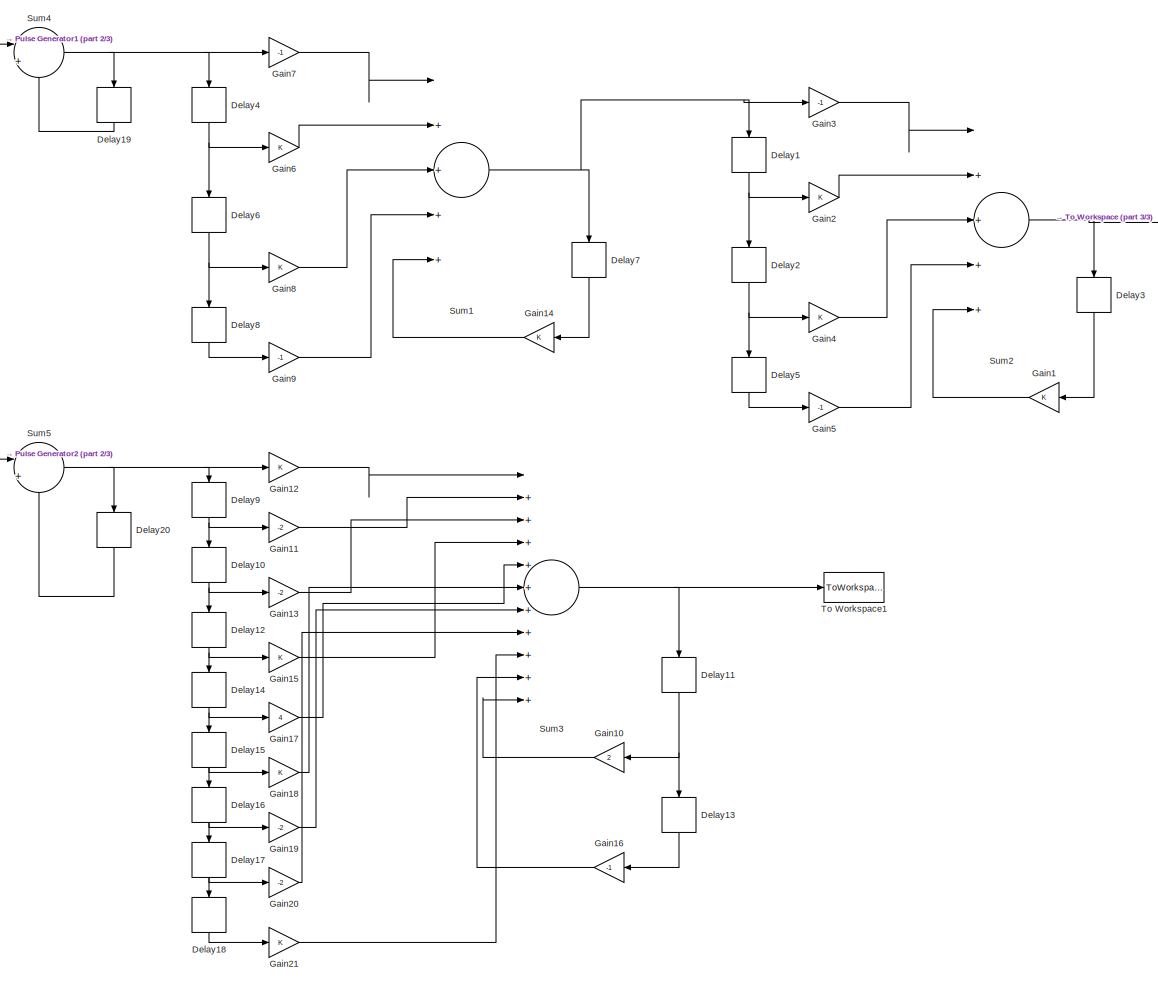
[diagram: root canvas - part 1/3, most of the canvas]
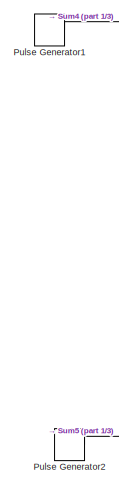
[diagram: root canvas - part 2/3, top left region]
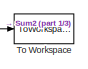
[diagram: root canvas - part 3/3, top right region]
MODEL slx_5322fe0e7de6
KIND model
CONFIG AbsTol = auto
CONFIG EnableMultiTasking = on
CONFIG FixedStep = auto
CONFIG MaxStep = auto
CONFIG MinStep = auto
CONFIG RelTol = 1e-3
CONFIG SampleTimeConstraint = Unconstrained
CONFIG Solver = ode45
CONFIG SolverName = ode45
CONFIG StartTime = 0.0
CONFIG StopTime = 20
BLOCK [Delay] Delay1
  DelayLength = 3
  InitialCondition = 0
  InputPortMap = u0
  InputProcessing = Inherited
  Ports = [1, 1]
BLOCK [Delay] Delay10
  DelayLength = 1
  InitialCondition = 0
  InputPortMap = u0
  InputProcessing = Inherited
  Ports = [1, 1]
BLOCK [Delay] Delay11
  DelayLength = 1
  InitialCondition = 0
  InputPortMap = u0
  InputProcessing = Inherited
  Ports = [1, 1]
BLOCK [Delay] Delay12
  InitialCondition = 0
  InputPortMap = u0
  InputProcessing = Inherited
  Ports = [1, 1]
BLOCK [Delay] Delay13
  DelayLength = 1
  InitialCondition = 0
  InputPortMap = u0
  InputProcessing = Inherited
  Ports = [1, 1]
BLOCK [Delay] Delay14
  DelayLength = 1
  InitialCondition = 0
  InputPortMap = u0
  InputProcessing = Inherited
  Ports = [1, 1]
BLOCK [Delay] Delay15
  DelayLength = 1
  InitialCondition = 0
  InputPortMap = u0
  InputProcessing = Inherited
  Ports = [1, 1]
BLOCK [Delay] Delay16
  InitialCondition = 0
  InputPortMap = u0
  InputProcessing = Inherited
  Ports = [1, 1]
BLOCK [Delay] Delay17
  DelayLength = 1
  InitialCondition = 0
  InputPortMap = u0
  InputProcessing = Inherited
  Ports = [1, 1]
BLOCK [Delay] Delay18
  DelayLength = 3
  InitialCondition = 0
  InputPortMap = u0
  InputProcessing = Inherited
  Ports = [1, 1]
BLOCK [Delay] Delay19
  DelayLength = 14
  InitialCondition = 0
  InputPortMap = u0
  InputProcessing = Inherited
  Ports = [1, 1]
BLOCK [Delay] Delay2
  DelayLength = 1
  InitialCondition = 0
  InputPortMap = u0
  InputProcessing = Inherited
  Ports = [1, 1]
BLOCK [Delay] Delay20
  DelayLength = 14
  InitialCondition = 0
  InputPortMap = u0
  InputProcessing = Inherited
  Ports = [1, 1]
BLOCK [Delay] Delay3
  DelayLength = 1
  InitialCondition = 0
  InputPortMap = u0
  InputProcessing = Inherited
  Ports = [1, 1]
BLOCK [Delay] Delay4
  DelayLength = 3
  InitialCondition = 0
  InputPortMap = u0
  InputProcessing = Inherited
  Ports = [1, 1]
BLOCK [Delay] Delay5
  DelayLength = 3
  InitialCondition = 0
  InputPortMap = u0
  InputProcessing = Inherited
  Ports = [1, 1]
BLOCK [Delay] Delay6
  DelayLength = 1
  InitialCondition = 0
  InputPortMap = u0
  InputProcessing = Inherited
  Ports = [1, 1]
BLOCK [Delay] Delay7
  DelayLength = 1
  InitialCondition = 0
  InputPortMap = u0
  InputProcessing = Inherited
  Ports = [1, 1]
BLOCK [Delay] Delay8
  DelayLength = 3
  InitialCondition = 0
  InputPortMap = u0
  InputProcessing = Inherited
  Ports = [1, 1]
BLOCK [Delay] Delay9
  DelayLength = 3
  InitialCondition = 0
  InputPortMap = u0
  InputProcessing = Inherited
  Ports = [1, 1]
BLOCK [Gain] Gain1
  OutDataTypeStr = Inherit: Inherit via internal rule
  ParamDataTypeStr = Inherit: Inherit via internal rule
  SaturateOnIntegerOverflow = off
BLOCK [Gain] Gain10
  Gain = 2
  OutDataTypeStr = Inherit: Inherit via internal rule
  ParamDataTypeStr = Inherit: Inherit via internal rule
  SaturateOnIntegerOverflow = off
BLOCK [Gain] Gain11
  Gain = -2
  OutDataTypeStr = Inherit: Inherit via internal rule
  ParamDataTypeStr = Inherit: Inherit via internal rule
  SaturateOnIntegerOverflow = off
BLOCK [Gain] Gain12
  OutDataTypeStr = Inherit: Inherit via internal rule
  ParamDataTypeStr = Inherit: Inherit via internal rule
  SaturateOnIntegerOverflow = off
BLOCK [Gain] Gain13
  Gain = -2
  OutDataTypeStr = Inherit: Inherit via internal rule
  ParamDataTypeStr = Inherit: Inherit via internal rule
  SaturateOnIntegerOverflow = off
BLOCK [Gain] Gain14
  OutDataTypeStr = Inherit: Inherit via internal rule
  ParamDataTypeStr = Inherit: Inherit via internal rule
  SaturateOnIntegerOverflow = off
BLOCK [Gain] Gain15
  OutDataTypeStr = Inherit: Inherit via internal rule
  ParamDataTypeStr = Inherit: Inherit via internal rule
  SaturateOnIntegerOverflow = off
BLOCK [Gain] Gain16
  Gain = -1
  OutDataTypeStr = Inherit: Inherit via internal rule
  ParamDataTypeStr = Inherit: Inherit via internal rule
  SaturateOnIntegerOverflow = off
BLOCK [Gain] Gain17
  Gain = 4
  OutDataTypeStr = Inherit: Inherit via internal rule
  ParamDataTypeStr = Inherit: Inherit via internal rule
  SaturateOnIntegerOverflow = off
BLOCK [Gain] Gain18
  OutDataTypeStr = Inherit: Inherit via internal rule
  ParamDataTypeStr = Inherit: Inherit via internal rule
  SaturateOnIntegerOverflow = off
BLOCK [Gain] Gain19
  Gain = -2
  OutDataTypeStr = Inherit: Inherit via internal rule
  ParamDataTypeStr = Inherit: Inherit via internal rule
  SaturateOnIntegerOverflow = off
BLOCK [Gain] Gain2
  OutDataTypeStr = Inherit: Inherit via internal rule
  ParamDataTypeStr = Inherit: Inherit via internal rule
  SaturateOnIntegerOverflow = off
BLOCK [Gain] Gain20
  Gain = -2
  OutDataTypeStr = Inherit: Inherit via internal rule
  ParamDataTypeStr = Inherit: Inherit via internal rule
  SaturateOnIntegerOverflow = off
BLOCK [Gain] Gain21
  OutDataTypeStr = Inherit: Inherit via internal rule
  ParamDataTypeStr = Inherit: Inherit via internal rule
  SaturateOnIntegerOverflow = off
BLOCK [Gain] Gain3
  Gain = -1
  OutDataTypeStr = Inherit: Inherit via internal rule
  ParamDataTypeStr = Inherit: Inherit via internal rule
  SaturateOnIntegerOverflow = off
BLOCK [Gain] Gain4
  OutDataTypeStr = Inherit: Inherit via internal rule
  ParamDataTypeStr = Inherit: Inherit via internal rule
  SaturateOnIntegerOverflow = off
BLOCK [Gain] Gain5
  Gain = -1
  OutDataTypeStr = Inherit: Inherit via internal rule
  ParamDataTypeStr = Inherit: Inherit via internal rule
  SaturateOnIntegerOverflow = off
BLOCK [Gain] Gain6
  OutDataTypeStr = Inherit: Inherit via internal rule
  ParamDataTypeStr = Inherit: Inherit via internal rule
  SaturateOnIntegerOverflow = off
BLOCK [Gain] Gain7
  Gain = -1
  OutDataTypeStr = Inherit: Inherit via internal rule
  ParamDataTypeStr = Inherit: Inherit via internal rule
  SaturateOnIntegerOverflow = off
BLOCK [Gain] Gain8
  OutDataTypeStr = Inherit: Inherit via internal rule
  ParamDataTypeStr = Inherit: Inherit via internal rule
  SaturateOnIntegerOverflow = off
BLOCK [Gain] Gain9
  Gain = -1
  OutDataTypeStr = Inherit: Inherit via internal rule
  ParamDataTypeStr = Inherit: Inherit via internal rule
  SaturateOnIntegerOverflow = off
BLOCK [DiscretePulseGenerator] Pulse Generator1
  Period = 10000
  Ports = [0, 1]
BLOCK [DiscretePulseGenerator] Pulse Generator2
  Period = 10000
  Ports = [0, 1]
BLOCK [Sum] Sum1
  InputSameDT = off
  Inputs = |+++++
  OutDataTypeStr = Inherit: Inherit via internal rule
  Ports = [5, 1]
  SaturateOnIntegerOverflow = off
BLOCK [Sum] Sum2
  InputSameDT = off
  Inputs = |+++++
  OutDataTypeStr = Inherit: Inherit via internal rule
  Ports = [5, 1]
  SaturateOnIntegerOverflow = off
BLOCK [Sum] Sum3
  InputSameDT = off
  Inputs = |+++++++++++
  OutDataTypeStr = Inherit: Inherit via internal rule
  Ports = [11, 1]
  SaturateOnIntegerOverflow = off
BLOCK [Sum] Sum4
  IconShape = round
  InputSameDT = off
  Inputs = |++
  OutDataTypeStr = Inherit: Inherit via internal rule
  Ports = [2, 1]
  SaturateOnIntegerOverflow = off
BLOCK [Sum] Sum5
  IconShape = round
  InputSameDT = off
  Inputs = |++
  OutDataTypeStr = Inherit: Inherit via internal rule
  Ports = [2, 1]
  SaturateOnIntegerOverflow = off
BLOCK [ToWorkspace] To Workspace
  FixptAsFi = on
  MaxDataPoints = inf
  Ports = [1]
  SampleTime = -1
  Save2DSignal = 3-D array (concatenate along third dimension)
  VariableName = simout
BLOCK [ToWorkspace] To Workspace1
  FixptAsFi = on
  MaxDataPoints = inf
  Ports = [1]
  SampleTime = -1
  Save2DSignal = 3-D array (concatenate along third dimension)
  VariableName = simout2
NET Delay10:1 -> Delay12:1, Gain13:1
NET Delay11:1 -> Delay13:1, Gain10:1
NET Delay12:1 -> Delay14:1, Gain15:1
LINE Delay13:1 -> Gain16:1
NET Delay14:1 -> Delay15:1, Gain17:1
NET Delay15:1 -> Delay16:1, Gain18:1
NET Delay16:1 -> Delay17:1, Gain19:1
NET Delay17:1 -> Delay18:1, Gain20:1
LINE Delay18:1 -> Gain21:1
LINE Delay19:1 -> Sum4:2
NET Delay1:1 -> Delay2:1, Gain2:1
LINE Delay20:1 -> Sum5:2
NET Delay2:1 -> Delay5:1, Gain4:1
LINE Delay3:1 -> Gain1:1
NET Delay4:1 -> Delay6:1, Gain6:1
LINE Delay5:1 -> Gain5:1
NET Delay6:1 -> Delay8:1, Gain8:1
LINE Delay7:1 -> Gain14:1
LINE Delay8:1 -> Gain9:1
NET Delay9:1 -> Delay10:1, Gain11:1
LINE Gain10:1 -> Sum3:11
LINE Gain11:1 -> Sum3:2
LINE Gain12:1 -> Sum3:1
LINE Gain13:1 -> Sum3:3
LINE Gain14:1 -> Sum1:5
LINE Gain15:1 -> Sum3:4
LINE Gain16:1 -> Sum3:10
LINE Gain17:1 -> Sum3:5
LINE Gain18:1 -> Sum3:6
LINE Gain19:1 -> Sum3:7
LINE Gain1:1 -> Sum2:5
LINE Gain20:1 -> Sum3:8
LINE Gain21:1 -> Sum3:9
LINE Gain2:1 -> Sum2:2
LINE Gain3:1 -> Sum2:1
LINE Gain4:1 -> Sum2:3
LINE Gain5:1 -> Sum2:4
LINE Gain6:1 -> Sum1:2
LINE Gain7:1 -> Sum1:1
LINE Gain8:1 -> Sum1:3
LINE Gain9:1 -> Sum1:4
LINE Pulse Generator1:1 -> Sum4:1
LINE Pulse Generator2:1 -> Sum5:1
NET Sum1:1 -> Delay1:1, Delay7:1, Gain3:1
NET Sum2:1 -> Delay3:1, To Workspace:1
NET Sum3:1 -> Delay11:1, To Workspace1:1
NET Sum4:1 -> Delay19:1, Delay4:1, Gain7:1
NET Sum5:1 -> Delay20:1, Delay9:1, Gain12:1
note: NET lines group one-source signal fan-out (src -> all destinations, sorted); 1:1 wires keep LINE
